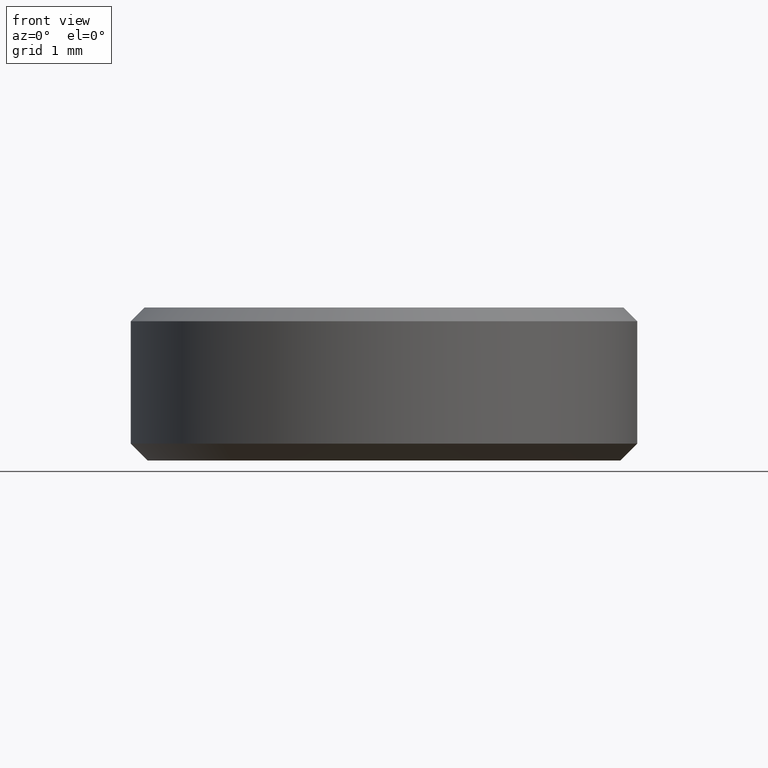
[diagram: clean part render]
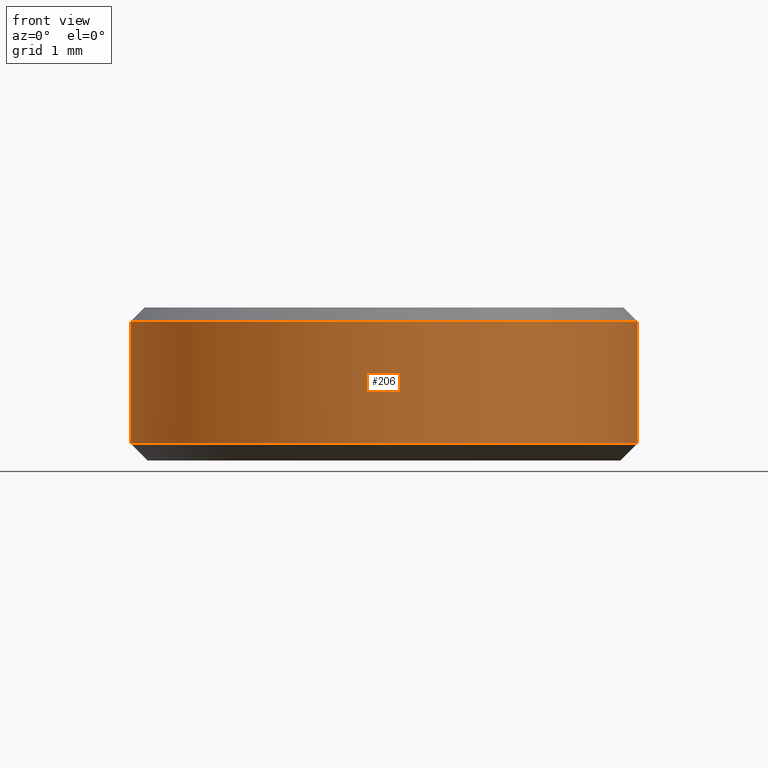
[diagram: same view with one face highlighted and labeled with its STEP entity id]
A machine part, front view. The second image highlights one B-rep face of the part: STEP entity #206.
In plain terms, the highlighted cylindrical surface (partial cylindrical patch) has radius 3 mm, axis along (-0, -0, 1).
Its self-contained STEP definition (entity closure, byte-faithful):
#8 = EDGE_CURVE ( 'NONE', #235, #187, #142, .T. ) ;
#12 = CARTESIAN_POINT ( 'NONE',  ( -3.000000000000000000, 3.673940397442059868E-16, 0.2000000000000011768 ) ) ;
#22 = CARTESIAN_POINT ( 'NONE',  ( 0.000000000000000000, 0.000000000000000000, 0.2000000000000011768 ) ) ;
#23 = CARTESIAN_POINT ( 'NONE',  ( 3.000000000000000000, 0.000000000000000000, 1.650000000000000355 ) ) ;
#26 = VECTOR ( 'NONE', #45, 1000.000000000000000 ) ;
#35 = AXIS2_PLACEMENT_3D ( 'NONE', #22, #104, #265 ) ;
#45 = DIRECTION ( 'NONE',  ( -0.000000000000000000, -0.000000000000000000, 1.000000000000000000 ) ) ;
#50 = ORIENTED_EDGE ( 'NONE', *, *, #63, .T. ) ;
#53 = EDGE_CURVE ( 'NONE', #235, #210, #85, .T. ) ;
#63 = EDGE_CURVE ( 'NONE', #107, #210, #129, .T. ) ;
#65 = EDGE_LOOP ( 'NONE', ( #231, #233, #262, #50 ) ) ;
#68 = EDGE_CURVE ( 'NONE', #187, #107, #239, .T. ) ;
#70 = DIRECTION ( 'NONE',  ( 0.000000000000000000, 0.000000000000000000, -1.000000000000000000 ) ) ;
#85 = LINE ( 'NONE', #131, #26 ) ;
#89 = DIRECTION ( 'NONE',  ( -0.000000000000000000, -0.000000000000000000, 1.000000000000000000 ) ) ;
#104 = DIRECTION ( 'NONE',  ( -0.000000000000000000, -0.000000000000000000, 1.000000000000000000 ) ) ;
#107 = VERTEX_POINT ( 'NONE', #23 ) ;
#110 = CARTESIAN_POINT ( 'NONE',  ( 3.000000000000000000, 0.000000000000000000, 1.500000000000000000 ) ) ;
#129 = CIRCLE ( 'NONE', #182, 3.000000000000000000 ) ;
#131 = CARTESIAN_POINT ( 'NONE',  ( -3.000000000000000000, 3.673940397442059868E-16, 1.500000000000000000 ) ) ;
#136 = CARTESIAN_POINT ( 'NONE',  ( -3.000000000000000000, 3.673940397442059868E-16, 1.650000000000000355 ) ) ;
#138 = CARTESIAN_POINT ( 'NONE',  ( 0.000000000000000000, 0.000000000000000000, 1.500000000000000000 ) ) ;
#142 = CIRCLE ( 'NONE', #35, 3.000000000000000000 ) ;
#153 = CARTESIAN_POINT ( 'NONE',  ( 3.000000000000000000, 0.000000000000000000, 0.2000000000000011768 ) ) ;
#159 = DIRECTION ( 'NONE',  ( -1.000000000000000000, 0.000000000000000000, 0.000000000000000000 ) ) ;
#168 = VECTOR ( 'NONE', #178, 1000.000000000000000 ) ;
#178 = DIRECTION ( 'NONE',  ( -0.000000000000000000, -0.000000000000000000, 1.000000000000000000 ) ) ;
#182 = AXIS2_PLACEMENT_3D ( 'NONE', #218, #70, #159 ) ;
#183 = AXIS2_PLACEMENT_3D ( 'NONE', #138, #89, #223 ) ;
#187 = VERTEX_POINT ( 'NONE', #153 ) ;
#201 = FACE_OUTER_BOUND ( 'NONE', #65, .T. ) ;
#206 = ADVANCED_FACE ( 'NONE', ( #201 ), #221, .T. ) ;
#210 = VERTEX_POINT ( 'NONE', #136 ) ;
#218 = CARTESIAN_POINT ( 'NONE',  ( 0.000000000000000000, 0.000000000000000000, 1.650000000000000355 ) ) ;
#221 = CYLINDRICAL_SURFACE ( 'NONE', #183, 3.000000000000000000 ) ;
#223 = DIRECTION ( 'NONE',  ( 1.000000000000000000, 0.000000000000000000, 0.000000000000000000 ) ) ;
#231 = ORIENTED_EDGE ( 'NONE', *, *, #53, .F. ) ;
#233 = ORIENTED_EDGE ( 'NONE', *, *, #8, .T. ) ;
#235 = VERTEX_POINT ( 'NONE', #12 ) ;
#239 = LINE ( 'NONE', #110, #168 ) ;
#262 = ORIENTED_EDGE ( 'NONE', *, *, #68, .T. ) ;
#265 = DIRECTION ( 'NONE',  ( 1.000000000000000000, 0.000000000000000000, 0.000000000000000000 ) ) ;